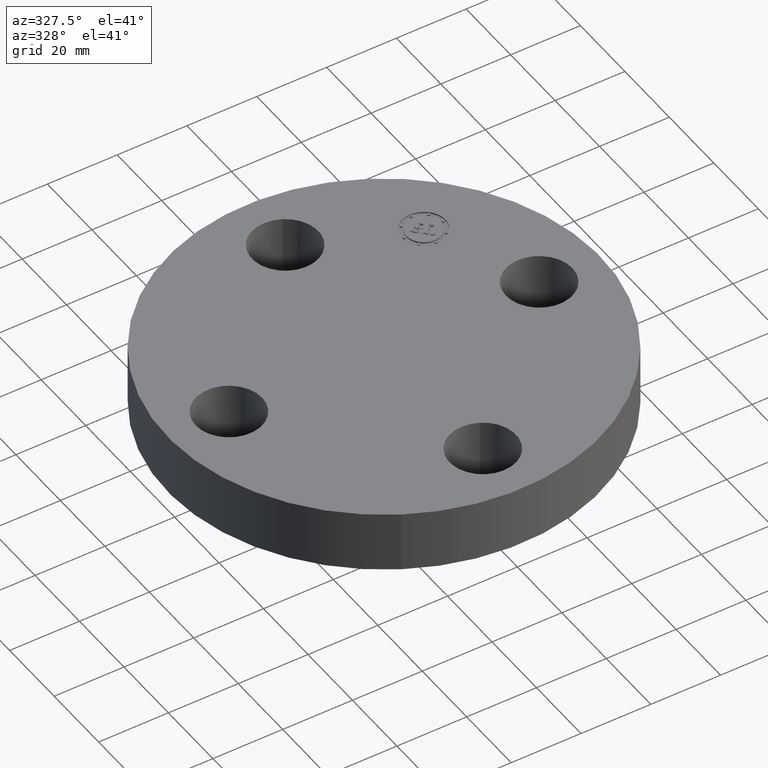
[diagram: clean part render]
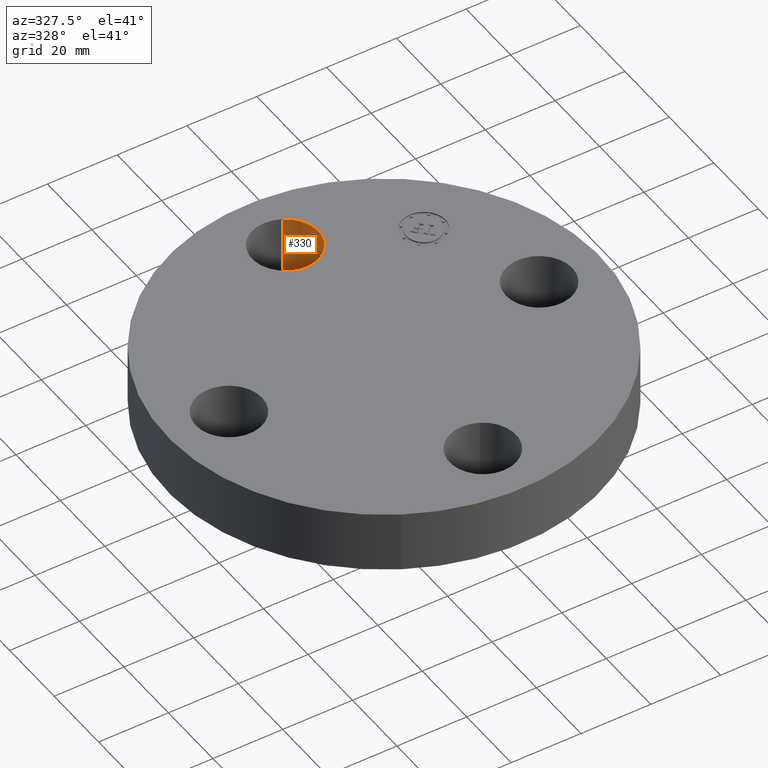
[diagram: same view with one face highlighted and labeled with its STEP entity id]
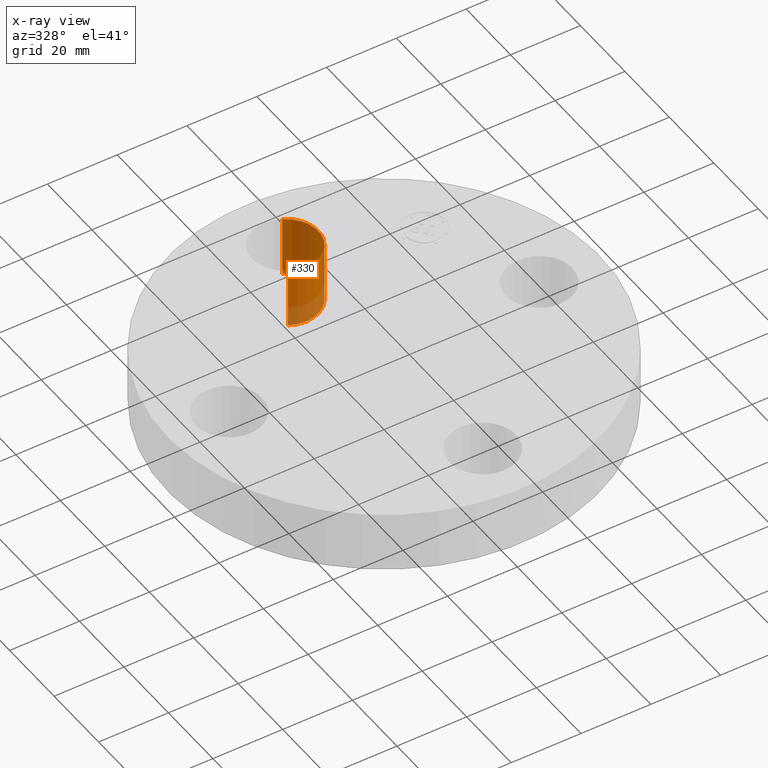
[diagram: x-ray of the same camera — body ghosted, the highlighted face saturated]
A machine part, auxiliary view. The second image highlights one B-rep face of the part: STEP entity #330.
The next image is the same camera in x-ray: the body ghosted, the highlighted face saturated — about 18% of this face is hidden behind the body in this view.
In plain terms, the highlighted cylindrical surface (partial cylindrical patch) has radius 9.525 mm, axis along (0, 0, -1).
Its self-contained STEP definition (entity closure, byte-faithful):
#280=AXIS2_PLACEMENT_3D('Circle Axis2P3D',#278,#279,$) ;
#291=AXIS2_PLACEMENT_3D('Cylinder Axis2P3D',#288,#289,#290) ;
#321=AXIS2_PLACEMENT_3D('Circle Axis2P3D',#319,#320,$) ;
#273=CARTESIAN_POINT('Vertex',(-0.179784576977,1.4209065393,0.)) ;
#275=CARTESIAN_POINT('Vertex',(0.179784576977,2.07909346072,0.)) ;
#278=CARTESIAN_POINT('Axis2P3D Location',(-3.1470888887E-016,1.75000000001,0.)) ;
#288=CARTESIAN_POINT('Axis2P3D Location',(-3.21469784777E-016,1.75000000001,0.686062992129)) ;
#293=CARTESIAN_POINT('Line Origine',(-0.179784576977,1.4209065393,0.345000000001)) ;
#297=CARTESIAN_POINT('Vertex',(-0.179784576977,1.4209065393,0.690000000003)) ;
#300=CARTESIAN_POINT('Line Origine',(0.179784576977,2.07909346072,0.345000000001)) ;
#304=CARTESIAN_POINT('Vertex',(0.179784576977,2.07909346072,0.690000000003)) ;
#319=CARTESIAN_POINT('Axis2P3D Location',(-3.21469784777E-016,1.75000000001,0.690000000003)) ;
#279=DIRECTION('Axis2P3D Direction',(0.,0.,-0.0393700787402)) ;
#289=DIRECTION('Axis2P3D Direction',(0.,0.,-0.0393700787402)) ;
#290=DIRECTION('Axis2P3D XDirection',(0.0188750212049,0.0345504945626,0.)) ;
#294=DIRECTION('Vector Direction',(0.,0.,-0.0393700787402)) ;
#301=DIRECTION('Vector Direction',(0.,0.,-0.0393700787402)) ;
#320=DIRECTION('Axis2P3D Direction',(0.,0.,-0.0393700787402)) ;
#295=VECTOR('Line Direction',#294,0.0393700787402) ;
#302=VECTOR('Line Direction',#301,0.0393700787402) ;
#325=ORIENTED_EDGE('',*,*,#306,.F.) ;
#326=ORIENTED_EDGE('',*,*,#282,.T.) ;
#327=ORIENTED_EDGE('',*,*,#299,.T.) ;
#328=ORIENTED_EDGE('',*,*,#323,.F.) ;
#330=ADVANCED_FACE('PartBody',(#329),#292,.F.) ;
#281=CIRCLE('generated circle',#280,0.375000000001) ;
#322=CIRCLE('generated circle',#321,0.375000000001) ;
#292=CYLINDRICAL_SURFACE('generated cylinder',#291,0.375000000001) ;
#282=EDGE_CURVE('',#276,#274,#281,.T.) ;
#299=EDGE_CURVE('',#274,#298,#296,.F.) ;
#306=EDGE_CURVE('',#276,#305,#303,.F.) ;
#323=EDGE_CURVE('',#305,#298,#322,.T.) ;
#324=EDGE_LOOP('',(#325,#326,#327,#328)) ;
#329=FACE_OUTER_BOUND('',#324,.T.) ;
#296=LINE('Line',#293,#295) ;
#303=LINE('Line',#300,#302) ;
#274=VERTEX_POINT('',#273) ;
#276=VERTEX_POINT('',#275) ;
#298=VERTEX_POINT('',#297) ;
#305=VERTEX_POINT('',#304) ;